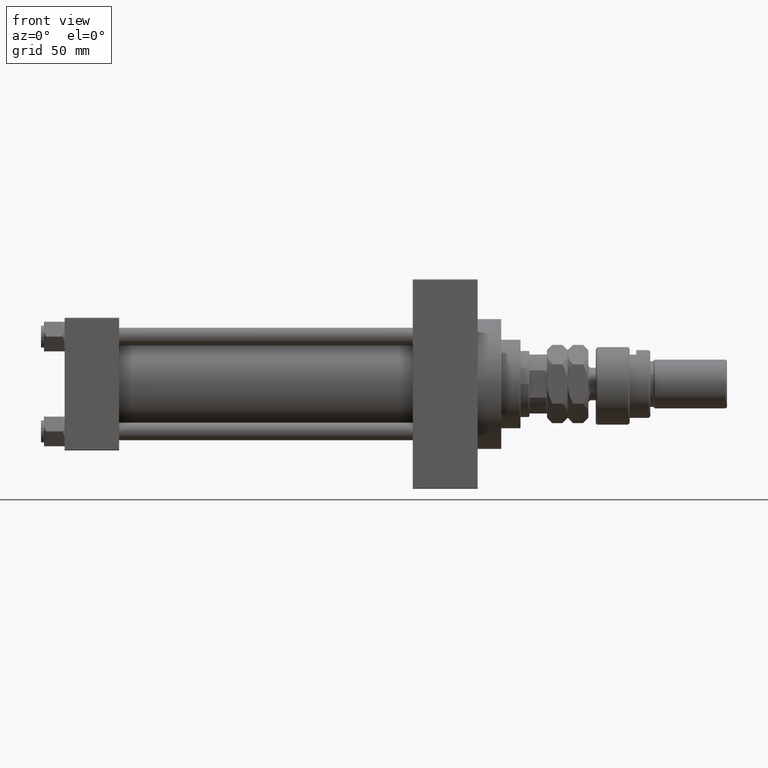
[diagram: clean part render]
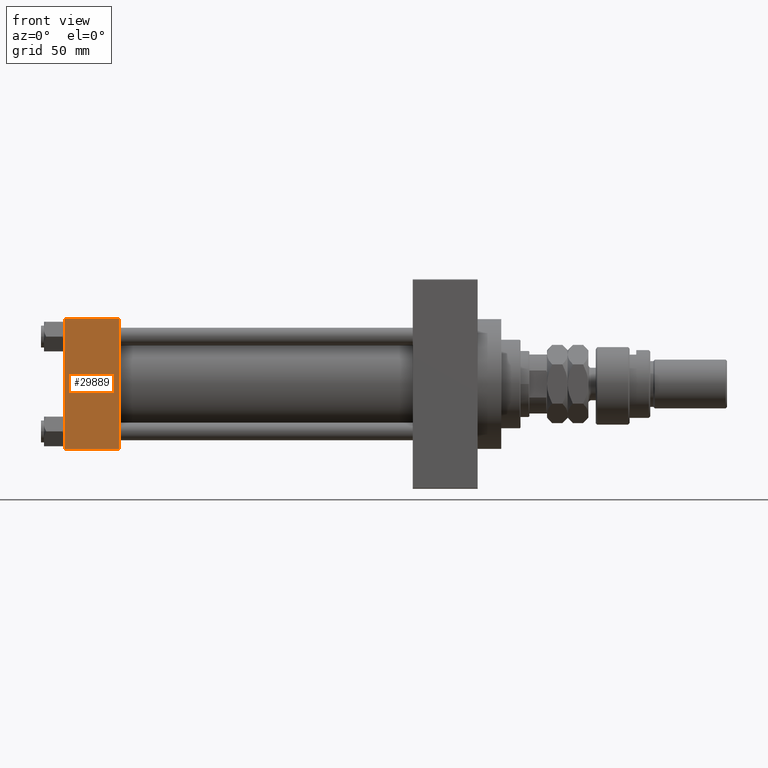
[diagram: same view with one face highlighted and labeled with its STEP entity id]
A machine part, front view. The second image highlights one B-rep face of the part: STEP entity #29889.
In plain terms, the highlighted planar face has unit normal (0, 1, 0).
Its self-contained STEP definition (entity closure, byte-faithful):
#218 = DIRECTION ( 'NONE',  ( -1.000000000000000000, 0.000000000000000000, 0.000000000000000000 ) ) ;
#1799 = VECTOR ( 'NONE', #34577, 1000.000000000000000 ) ;
#8328 = VERTEX_POINT ( 'NONE', #19479 ) ;
#8945 = CARTESIAN_POINT ( 'NONE',  ( 37.00000000000000000, -45.00000000000000000, -44.49999999999995737 ) ) ;
#9761 = CARTESIAN_POINT ( 'NONE',  ( 37.00000000000000000, -45.00000000000000711, 44.49999999999997158 ) ) ;
#13209 = VERTEX_POINT ( 'NONE', #8945 ) ;
#13262 = EDGE_CURVE ( 'NONE', #8328, #41563, #49325, .T. ) ;
#14065 = DIRECTION ( 'NONE',  ( 0.000000000000000000, -7.709882115452478166E-17, 1.000000000000000000 ) ) ;
#15306 = LINE ( 'NONE', #35356, #1799 ) ;
#17665 = CARTESIAN_POINT ( 'NONE',  ( 0.000000000000000000, -45.00000000000000711, 45.00000000000000000 ) ) ;
#19007 = CARTESIAN_POINT ( 'NONE',  ( 0.000000000000000000, -45.00000000000000000, -44.49999999999995737 ) ) ;
#19072 = VERTEX_POINT ( 'NONE', #9761 ) ;
#19479 = CARTESIAN_POINT ( 'NONE',  ( 0.000000000000000000, -45.00000000000000711, 44.49999999999997158 ) ) ;
#19669 = VECTOR ( 'NONE', #218, 1000.000000000000000 ) ;
#23708 = CARTESIAN_POINT ( 'NONE',  ( 37.00000000000000000, -45.00000000000000711, 44.49999999999997158 ) ) ;
#28198 = CARTESIAN_POINT ( 'NONE',  ( 37.00000000000000000, -45.00000000000000000, -44.49999999999998579 ) ) ;
#28373 = EDGE_CURVE ( 'NONE', #41563, #13209, #51680, .T. ) ;
#28942 = ORIENTED_EDGE ( 'NONE', *, *, #37525, .T. ) ;
#29012 = DIRECTION ( 'NONE',  ( 0.000000000000000000, 7.709882115452476934E-17, -1.000000000000000000 ) ) ;
#29889 = ADVANCED_FACE ( 'NONE', ( #42816 ), #42294, .F. ) ;
#30899 = EDGE_CURVE ( 'NONE', #19072, #13209, #15306, .T. ) ;
#34577 = DIRECTION ( 'NONE',  ( 0.000000000000000000, 7.709882115452476934E-17, -1.000000000000000000 ) ) ;
#35356 = CARTESIAN_POINT ( 'NONE',  ( 37.00000000000000000, -45.00000000000000711, 45.00000000000000000 ) ) ;
#36377 = DIRECTION ( 'NONE',  ( 1.000000000000000000, 0.000000000000000000, 0.000000000000000000 ) ) ;
#36775 = ORIENTED_EDGE ( 'NONE', *, *, #28373, .T. ) ;
#37525 = EDGE_CURVE ( 'NONE', #19072, #8328, #47722, .T. ) ;
#37550 = VECTOR ( 'NONE', #29012, 1000.000000000000000 ) ;
#38036 = VECTOR ( 'NONE', #36377, 1000.000000000000000 ) ;
#40546 = ORIENTED_EDGE ( 'NONE', *, *, #13262, .T. ) ;
#41563 = VERTEX_POINT ( 'NONE', #19007 ) ;
#41772 = DIRECTION ( 'NONE',  ( -0.000000000000000000, 1.000000000000000000, 7.709882115452478166E-17 ) ) ;
#42294 = PLANE ( 'NONE',  #46356 ) ;
#42816 = FACE_OUTER_BOUND ( 'NONE', #47029, .T. ) ;
#46356 = AXIS2_PLACEMENT_3D ( 'NONE', #50472, #41772, #14065 ) ;
#46421 = ORIENTED_EDGE ( 'NONE', *, *, #30899, .F. ) ;
#47029 = EDGE_LOOP ( 'NONE', ( #40546, #36775, #46421, #28942 ) ) ;
#47722 = LINE ( 'NONE', #23708, #19669 ) ;
#49325 = LINE ( 'NONE', #17665, #37550 ) ;
#50472 = CARTESIAN_POINT ( 'NONE',  ( 37.00000000000000000, -45.00000000000000711, 45.00000000000000000 ) ) ;
#51680 = LINE ( 'NONE', #28198, #38036 ) ;